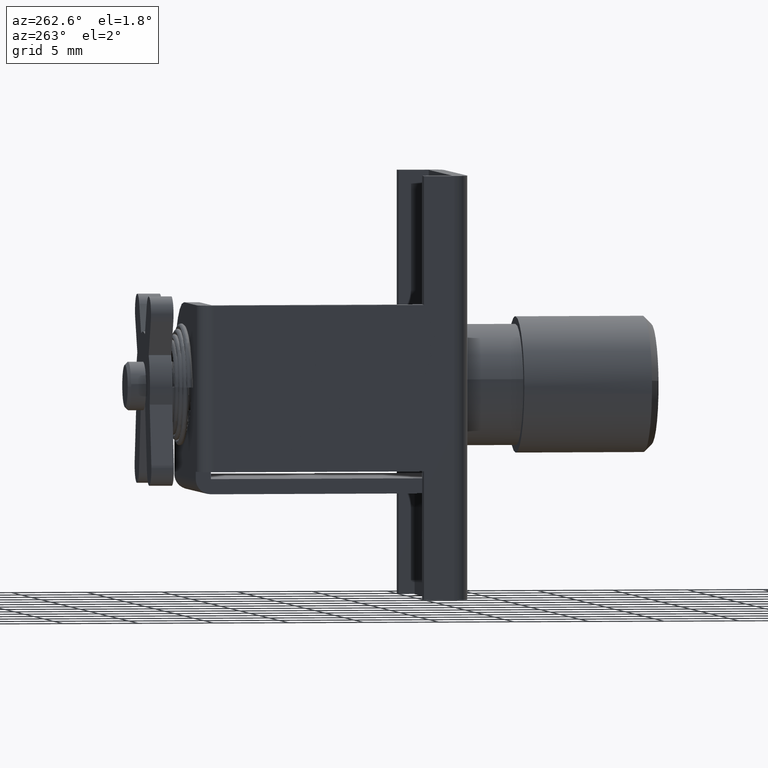
[diagram: clean part render]
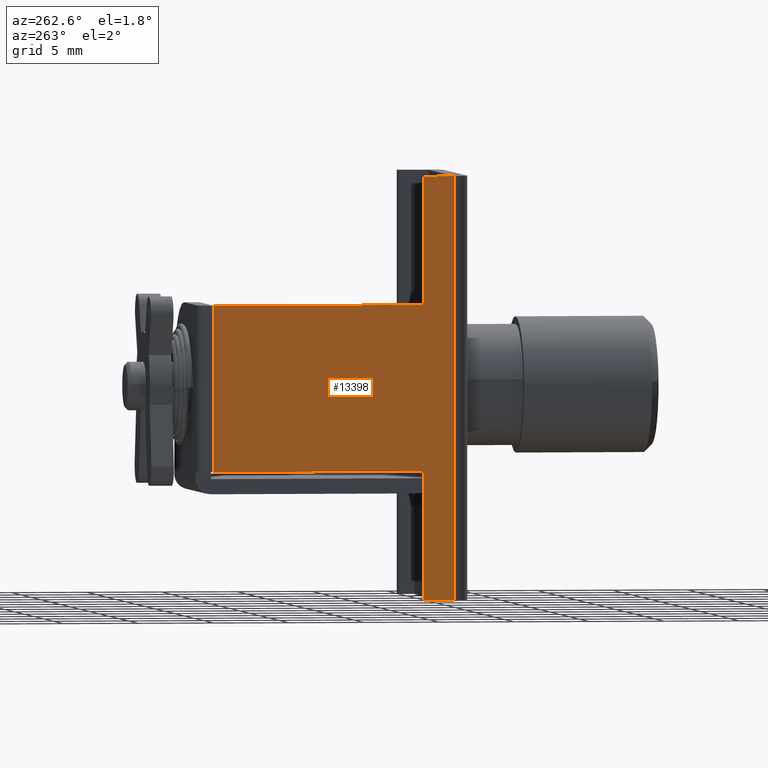
[diagram: same view with one face highlighted and labeled with its STEP entity id]
A machine part, auxiliary view. The second image highlights one B-rep face of the part: STEP entity #13398.
In plain terms, the highlighted face is a freeform B-spline surface patch.
Its self-contained STEP definition (entity closure, byte-faithful):
#13112=CARTESIAN_POINT('',(17.0,7.0,5.500000000000000));
#13113=VERTEX_POINT('',#13112);
#13134=CARTESIAN_POINT('',(17.0,7.0,-5.499999999999840));
#13135=VERTEX_POINT('',#13134);
#13149=CARTESIAN_POINT('',(17.0,7.0,-5.499999999999840));
#13150=CARTESIAN_POINT('',(17.0,7.0,5.500000000000000));
#13151=QUASI_UNIFORM_CURVE('',1,(#13149,#13150),.UNSPECIFIED.,.F.,.U.);
#13152=EDGE_CURVE('',#13135,#13113,#13151,.T.);
#13162=CARTESIAN_POINT('',(3.0,7.0,14.000000277756600));
#13163=VERTEX_POINT('',#13162);
#13171=CARTESIAN_POINT('',(1.0,7.0,14.000000277756600));
#13172=VERTEX_POINT('',#13171);
#13173=CARTESIAN_POINT('',(1.0,7.0,14.000000277756600));
#13174=CARTESIAN_POINT('',(3.0,7.0,14.000000277756600));
#13175=QUASI_UNIFORM_CURVE('',1,(#13173,#13174),.UNSPECIFIED.,.F.,.U.);
#13176=EDGE_CURVE('',#13172,#13163,#13175,.T.);
#13256=CARTESIAN_POINT('',(3.0,7.0,-13.999999722243301));
#13257=VERTEX_POINT('',#13256);
#13336=CARTESIAN_POINT('',(1.0,7.0,-13.999999722243301));
#13337=VERTEX_POINT('',#13336);
#13351=CARTESIAN_POINT('',(1.0,7.0,-13.999999722243301));
#13352=CARTESIAN_POINT('',(3.0,7.0,-13.999999722243301));
#13353=QUASI_UNIFORM_CURVE('',1,(#13351,#13352),.UNSPECIFIED.,.F.,.U.);
#13354=EDGE_CURVE('',#13337,#13257,#13353,.T.);
#13359=CARTESIAN_POINT('',(0.200800031011105,7.0,15.398599960643200));
#13360=CARTESIAN_POINT('',(0.200800031011105,7.0,-15.398600406487930));
#13361=CARTESIAN_POINT('',(17.799200398142339,7.0,15.398599960643200));
#13362=CARTESIAN_POINT('',(17.799200398142339,7.0,-15.398600406487930));
#13363=B_SPLINE_SURFACE_WITH_KNOTS('',1,1,((#13359,#13361),(#13360,#13362)),.UNSPECIFIED.,.F.,.F.,.U.,(2,2),(2,2),(0.0,30.797200367131119),(0.0,17.598400367131230),.UNSPECIFIED.);
#13364=ORIENTED_EDGE('',*,*,#13176,.T.);
#13365=CARTESIAN_POINT('',(3.0,7.0,5.500000000000000));
#13366=VERTEX_POINT('',#13365);
#13367=CARTESIAN_POINT('',(3.0,7.0,5.500000000000000));
#13368=CARTESIAN_POINT('',(3.0,7.0,14.000000277756600));
#13369=QUASI_UNIFORM_CURVE('',1,(#13367,#13368),.UNSPECIFIED.,.F.,.U.);
#13370=EDGE_CURVE('',#13366,#13163,#13369,.T.);
#13371=ORIENTED_EDGE('',*,*,#13370,.F.);
#13372=CARTESIAN_POINT('',(3.0,7.0,5.500000000000000));
#13373=CARTESIAN_POINT('',(17.0,7.0,5.500000000000000));
#13374=QUASI_UNIFORM_CURVE('',1,(#13372,#13373),.UNSPECIFIED.,.F.,.U.);
#13375=EDGE_CURVE('',#13366,#13113,#13374,.T.);
#13376=ORIENTED_EDGE('',*,*,#13375,.T.);
#13377=ORIENTED_EDGE('',*,*,#13152,.F.);
#13378=CARTESIAN_POINT('',(3.0,7.0,-5.499999999999840));
#13379=VERTEX_POINT('',#13378);
#13380=CARTESIAN_POINT('',(3.0,7.0,-5.499999999999840));
#13381=CARTESIAN_POINT('',(17.0,7.0,-5.499999999999840));
#13382=QUASI_UNIFORM_CURVE('',1,(#13380,#13381),.UNSPECIFIED.,.F.,.U.);
#13383=EDGE_CURVE('',#13379,#13135,#13382,.T.);
#13384=ORIENTED_EDGE('',*,*,#13383,.F.);
#13385=CARTESIAN_POINT('',(3.0,7.0,-13.999999722243301));
#13386=CARTESIAN_POINT('',(3.0,7.0,-5.499999999999840));
#13387=QUASI_UNIFORM_CURVE('',1,(#13385,#13386),.UNSPECIFIED.,.F.,.U.);
#13388=EDGE_CURVE('',#13257,#13379,#13387,.T.);
#13389=ORIENTED_EDGE('',*,*,#13388,.F.);
#13390=ORIENTED_EDGE('',*,*,#13354,.F.);
#13391=CARTESIAN_POINT('',(1.0,7.0,-13.999999722243301));
#13392=CARTESIAN_POINT('',(1.0,7.0,14.000000277756600));
#13393=QUASI_UNIFORM_CURVE('',1,(#13391,#13392),.UNSPECIFIED.,.F.,.U.);
#13394=EDGE_CURVE('',#13337,#13172,#13393,.T.);
#13395=ORIENTED_EDGE('',*,*,#13394,.T.);
#13396=EDGE_LOOP('',(#13364,#13371,#13376,#13377,#13384,#13389,#13390,#13395));
#13397=FACE_OUTER_BOUND('',#13396,.T.);
#13398=ADVANCED_FACE('',(#13397),#13363,.F.);